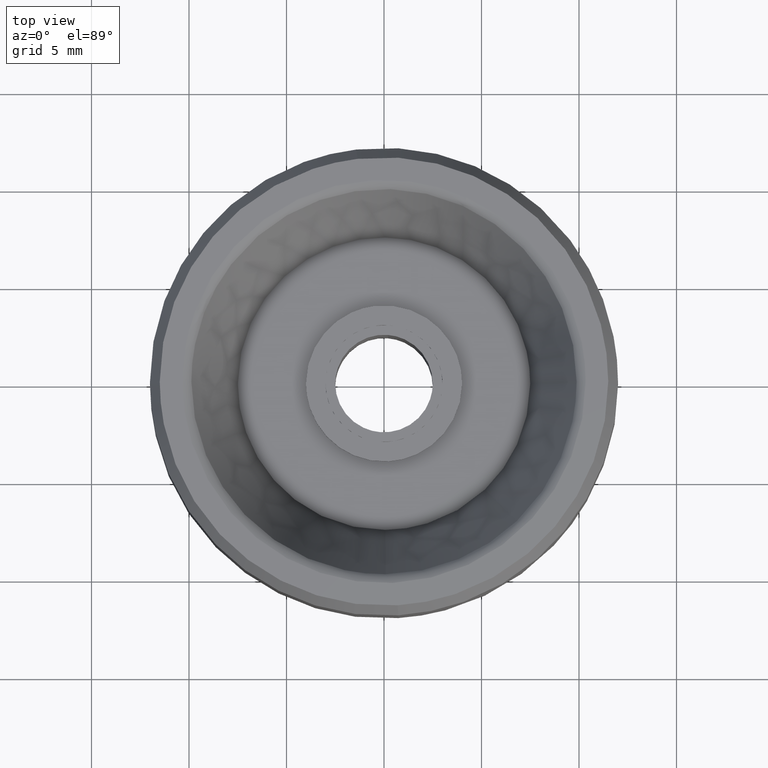
[diagram: clean part render]
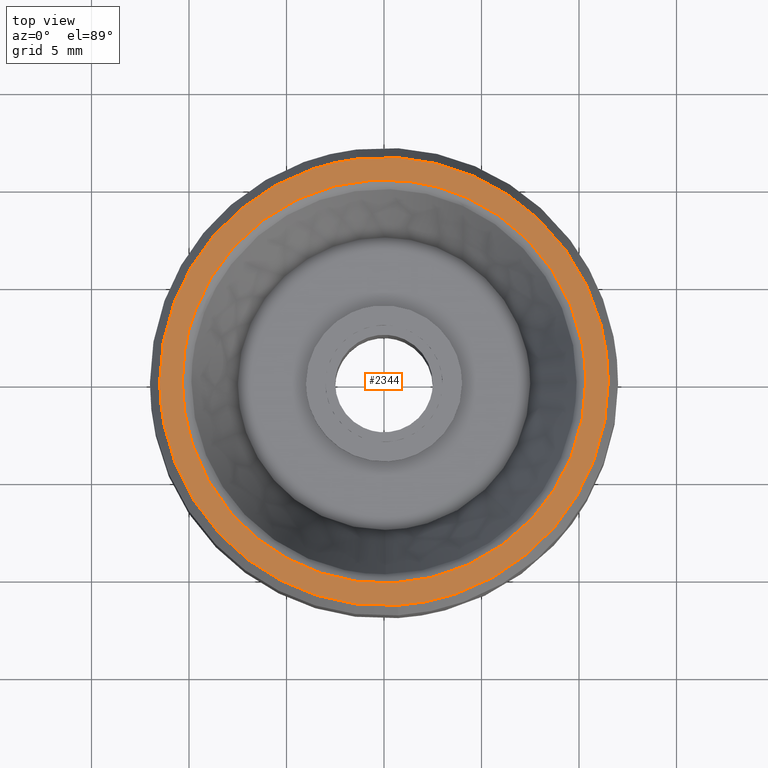
[diagram: same view with one face highlighted and labeled with its STEP entity id]
A machine part, top view. The second image highlights one B-rep face of the part: STEP entity #2344.
In plain terms, the highlighted face is a freeform B-spline surface patch.
Its self-contained STEP definition (entity closure, byte-faithful):
#1887=CARTESIAN_POINT('',(-1.357393698560204,11.419609553181960,15.999999999998639));
#1888=VERTEX_POINT('',#1887);
#1894=CARTESIAN_POINT('',(11.500000000000000,0.0,16.0));
#1895=VERTEX_POINT('',#1894);
#1896=CARTESIAN_POINT('',(-1.357393698560204,11.419609553181962,15.999999999998648));
#1897=CARTESIAN_POINT('',(-0.681077376004445,11.499999999999996,15.999999999999996));
#1898=CARTESIAN_POINT('',(0.0,11.500000000000000,16.0));
#1899=CARTESIAN_POINT('',(11.500000000000000,11.500000000000000,15.999999999999998));
#1900=CARTESIAN_POINT('',(11.500000000000000,0.0,16.0));
#1908=(BOUNDED_CURVE()B_SPLINE_CURVE(2,(#1896,#1897,#1898,#1899,#1900),.UNSPECIFIED.,.F.,.U.)B_SPLINE_CURVE_WITH_KNOTS((3,2,3),(0.229562473515425,0.250000000000000,0.500000000000000),.UNSPECIFIED.)CURVE()GEOMETRIC_REPRESENTATION_ITEM()RATIONAL_B_SPLINE_CURVE((0.956026754187456,0.976055948333391,1.0,0.707106781186548,1.0))REPRESENTATION_ITEM(''));
#1909=EDGE_CURVE('',#1888,#1895,#1908,.T.);
#1911=CARTESIAN_POINT('',(0.702058204650977,-11.478550181851469,15.999999999999980));
#1912=VERTEX_POINT('',#1911);
#1913=CARTESIAN_POINT('',(11.500000000000000,0.0,16.0));
#1914=CARTESIAN_POINT('',(11.499999999999998,-10.818119769415276,16.000000000000007));
#1915=CARTESIAN_POINT('',(0.702058204650977,-11.478550181851467,15.999999999999979));
#1923=(BOUNDED_CURVE()B_SPLINE_CURVE(2,(#1913,#1914,#1915),.UNSPECIFIED.,.F.,.U.)B_SPLINE_CURVE_WITH_KNOTS((3,3),(0.500000000000000,0.739332962241965),.UNSPECIFIED.)CURVE()GEOMETRIC_REPRESENTATION_ITEM()RATIONAL_B_SPLINE_CURVE((1.0,0.719603993283170,0.976072041673195))REPRESENTATION_ITEM(''));
#1924=EDGE_CURVE('',#1895,#1912,#1923,.T.);
#1957=CARTESIAN_POINT('',(-11.500000000000000,0.0,16.0));
#1958=VERTEX_POINT('',#1957);
#1959=CARTESIAN_POINT('',(0.702058204650977,-11.478550181851476,15.999999999999979));
#1960=CARTESIAN_POINT('',(0.351356777933894,-11.500000000000000,16.0));
#1961=CARTESIAN_POINT('',(0.0,-11.500000000000000,16.0));
#1962=CARTESIAN_POINT('',(-11.500000000000000,-11.500000000000000,15.999999999999998));
#1963=CARTESIAN_POINT('',(-11.500000000000000,0.0,16.0));
#1971=(BOUNDED_CURVE()B_SPLINE_CURVE(2,(#1959,#1960,#1961,#1962,#1963),.UNSPECIFIED.,.F.,.U.)B_SPLINE_CURVE_WITH_KNOTS((3,2,3),(0.739332962241965,0.750000000000000,1.0),.UNSPECIFIED.)CURVE()GEOMETRIC_REPRESENTATION_ITEM()RATIONAL_B_SPLINE_CURVE((0.976072041673194,0.987502787903378,1.0,0.707106781186548,1.0))REPRESENTATION_ITEM(''));
#1972=EDGE_CURVE('',#1912,#1958,#1971,.T.);
#1974=CARTESIAN_POINT('',(-11.500000000000000,0.0,16.0));
#1975=CARTESIAN_POINT('',(-11.500000000000000,10.214007048427391,16.0));
#1976=CARTESIAN_POINT('',(-1.357393698560204,11.419609553181964,15.999999999998639));
#1984=(BOUNDED_CURVE()B_SPLINE_CURVE(2,(#1974,#1975,#1976),.UNSPECIFIED.,.F.,.U.)B_SPLINE_CURVE_WITH_KNOTS((3,3),(0.0,0.229562473515425),.UNSPECIFIED.)CURVE()GEOMETRIC_REPRESENTATION_ITEM()RATIONAL_B_SPLINE_CURVE((1.0,0.731050832853157,0.956026754187456))REPRESENTATION_ITEM(''));
#1985=EDGE_CURVE('',#1958,#1888,#1984,.T.);
#2025=CARTESIAN_POINT('',(-9.664137561566529,3.686510465388390,16.0));
#2026=VERTEX_POINT('',#2025);
#2040=CARTESIAN_POINT('',(-10.343399549122459,0.0,16.0));
#2041=VERTEX_POINT('',#2040);
#2042=CARTESIAN_POINT('',(-10.343399549122459,0.0,16.0));
#2043=CARTESIAN_POINT('',(-10.343399549122461,1.905834310137202,16.000000000000007));
#2044=CARTESIAN_POINT('',(-9.664137561566529,3.686510465388390,15.999999999999996));
#2052=(BOUNDED_CURVE()B_SPLINE_CURVE(2,(#2042,#2043,#2044),.UNSPECIFIED.,.F.,.U.)B_SPLINE_CURVE_WITH_KNOTS((3,3),(0.0,0.060525011914657),.UNSPECIFIED.)CURVE()GEOMETRIC_REPRESENTATION_ITEM()RATIONAL_B_SPLINE_CURVE((1.0,0.929090537766374,0.892515443905165))REPRESENTATION_ITEM(''));
#2053=EDGE_CURVE('',#2041,#2026,#2052,.T.);
#2055=CARTESIAN_POINT('',(10.343399549122459,0.0,16.0));
#2056=VERTEX_POINT('',#2055);
#2057=CARTESIAN_POINT('',(10.343399549122459,0.0,16.0));
#2058=CARTESIAN_POINT('',(10.343399549122459,-10.343399549122459,15.999999999999998));
#2059=CARTESIAN_POINT('',(0.0,-10.343399549122459,16.0));
#2060=CARTESIAN_POINT('',(-10.343399549122459,-10.343399549122459,15.999999999999998));
#2061=CARTESIAN_POINT('',(-10.343399549122459,0.0,16.0));
#2069=(BOUNDED_CURVE()B_SPLINE_CURVE(2,(#2057,#2058,#2059,#2060,#2061),.UNSPECIFIED.,.F.,.U.)B_SPLINE_CURVE_WITH_KNOTS((3,2,3),(0.500000000000000,0.750000000000000,1.0),.UNSPECIFIED.)CURVE()GEOMETRIC_REPRESENTATION_ITEM()RATIONAL_B_SPLINE_CURVE((1.0,0.707106781186548,1.0,0.707106781186548,1.0))REPRESENTATION_ITEM(''));
#2070=EDGE_CURVE('',#2056,#2041,#2069,.T.);
#2072=CARTESIAN_POINT('',(4.233190528481268,9.437479122220534,16.0));
#2073=VERTEX_POINT('',#2072);
#2074=CARTESIAN_POINT('',(4.233190528481267,9.437479122220534,16.000000000000007));
#2075=CARTESIAN_POINT('',(10.343399549122459,6.696738865395710,16.000000000000007));
#2076=CARTESIAN_POINT('',(10.343399549122459,0.0,16.0));
#2084=(BOUNDED_CURVE()B_SPLINE_CURVE(2,(#2074,#2075,#2076),.UNSPECIFIED.,.F.,.U.)B_SPLINE_CURVE_WITH_KNOTS((3,3),(0.319501085436821,0.500000000000000),.UNSPECIFIED.)CURVE()GEOMETRIC_REPRESENTATION_ITEM()RATIONAL_B_SPLINE_CURVE((0.882422160154837,0.788532367685025,1.0))REPRESENTATION_ITEM(''));
#2085=EDGE_CURVE('',#2073,#2056,#2084,.T.);
#2128=CARTESIAN_POINT('',(-9.664137561566529,3.686510465388390,15.999999999999996));
#2129=CARTESIAN_POINT('',(-7.124780985599226,10.343399549122461,15.999999999999995));
#2130=CARTESIAN_POINT('',(0.0,10.343399549122459,16.0));
#2131=CARTESIAN_POINT('',(2.213530638913440,10.343399549122459,16.000000000000004));
#2132=CARTESIAN_POINT('',(4.233190528481267,9.437479122220534,16.000000000000007));
#2140=(BOUNDED_CURVE()B_SPLINE_CURVE(2,(#2128,#2129,#2130,#2131,#2132),.UNSPECIFIED.,.F.,.U.)B_SPLINE_CURVE_WITH_KNOTS((3,2,3),(0.060525011914657,0.250000000000000,0.319501085436821),.UNSPECIFIED.)CURVE()GEOMETRIC_REPRESENTATION_ITEM()RATIONAL_B_SPLINE_CURVE((0.892515443905165,0.778016243420173,1.0,0.918574413501523,0.882422160154837))REPRESENTATION_ITEM(''));
#2141=EDGE_CURVE('',#2026,#2073,#2140,.T.);
#2327=CARTESIAN_POINT('',(12.648849955421539,-12.648570271550859,16.0));
#2328=CARTESIAN_POINT('',(-12.648850572329611,-12.648570271550859,16.0));
#2329=CARTESIAN_POINT('',(12.648849955421539,12.648640804707259,16.0));
#2330=CARTESIAN_POINT('',(-12.648850572329611,12.648640804707259,16.0));
#2331=B_SPLINE_SURFACE_WITH_KNOTS('',1,1,((#2327,#2329),(#2328,#2330)),.UNSPECIFIED.,.F.,.F.,.U.,(2,2),(2,2),(0.0,25.297700527751150),(0.0,25.297211076258119),.UNSPECIFIED.);
#2332=ORIENTED_EDGE('',*,*,#1972,.F.);
#2333=ORIENTED_EDGE('',*,*,#1924,.F.);
#2334=ORIENTED_EDGE('',*,*,#1909,.F.);
#2335=ORIENTED_EDGE('',*,*,#1985,.F.);
#2336=EDGE_LOOP('',(#2332,#2333,#2334,#2335));
#2337=FACE_OUTER_BOUND('',#2336,.T.);
#2338=ORIENTED_EDGE('',*,*,#2070,.T.);
#2339=ORIENTED_EDGE('',*,*,#2053,.T.);
#2340=ORIENTED_EDGE('',*,*,#2141,.T.);
#2341=ORIENTED_EDGE('',*,*,#2085,.T.);
#2342=EDGE_LOOP('',(#2338,#2339,#2340,#2341));
#2343=FACE_BOUND('',#2342,.T.);
#2344=ADVANCED_FACE('',(#2337,#2343),#2331,.F.);